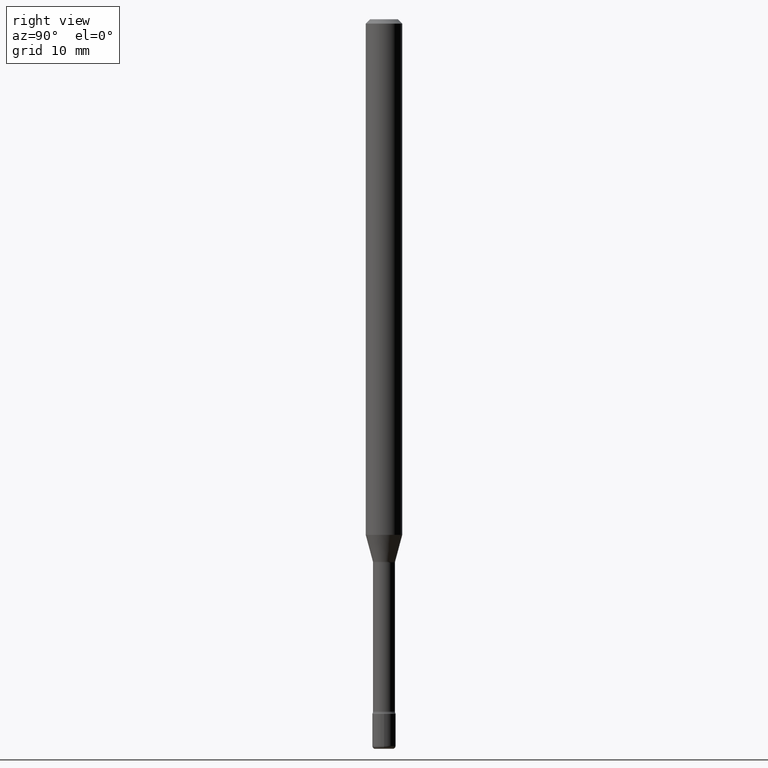
[diagram: clean part render]
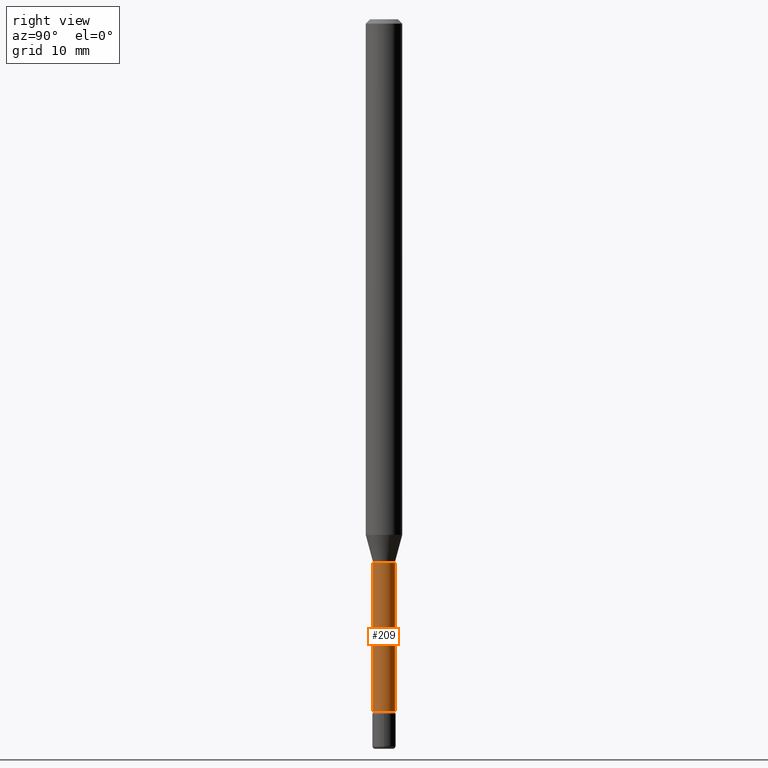
[diagram: same view with one face highlighted and labeled with its STEP entity id]
A machine part, right view. The second image highlights one B-rep face of the part: STEP entity #209.
In plain terms, the highlighted cylindrical surface (edge-blend (fillet) strip) has radius 0.955 mm, axis along (-0, 0, 1).
Its self-contained STEP definition (entity closure, byte-faithful):
#18 = CARTESIAN_POINT ( 'NONE',  ( 5.800080981349790489E-29, -8.281640804682186145E-15, -2.371861204020250025 ) ) ;
#19 = AXIS2_PLACEMENT_3D ( 'NONE', #54, #223, #530 ) ;
#25 = EDGE_CURVE ( 'NONE', #493, #86, #472, .T. ) ;
#32 = EDGE_CURVE ( 'NONE', #123, #86, #319, .T. ) ;
#41 = AXIS2_PLACEMENT_3D ( 'NONE', #495, #149, #369 ) ;
#54 = CARTESIAN_POINT ( 'NONE',  ( 4.553219443960964936E-29, -6.501310595667589929E-15, -1.861974787463811065 ) ) ;
#83 = LINE ( 'NONE', #254, #118 ) ;
#86 = VERTEX_POINT ( 'NONE', #312 ) ;
#90 = VERTEX_POINT ( 'NONE', #406 ) ;
#96 = ORIENTED_EDGE ( 'NONE', *, *, #25, .F. ) ;
#102 = DIRECTION ( 'NONE',  ( -6.982962677686265922E-15, -1.000000000000000000, 0.000000000000000000 ) ) ;
#112 = FACE_OUTER_BOUND ( 'NONE', #481, .T. ) ;
#118 = VECTOR ( 'NONE', #346, 39.37007874015748143 ) ;
#123 = VERTEX_POINT ( 'NONE', #450 ) ;
#131 = EDGE_CURVE ( 'NONE', #90, #123, #283, .T. ) ;
#149 = DIRECTION ( 'NONE',  ( -2.445371158952634318E-29, 3.491621175237824120E-15, 1.000000000000000000 ) ) ;
#209 = ADVANCED_FACE ( 'NONE', ( #112 ), #284, .T. ) ;
#223 = DIRECTION ( 'NONE',  ( -2.445371158952634318E-29, 3.491621175237824120E-15, 1.000000000000000000 ) ) ;
#253 = ORIENTED_EDGE ( 'NONE', *, *, #131, .T. ) ;
#254 = CARTESIAN_POINT ( 'NONE',  ( -2.625593966810038003E-16, -0.03760000000000002923, 6.093583550801884071E-16 ) ) ;
#264 = AXIS2_PLACEMENT_3D ( 'NONE', #18, #365, #102 ) ;
#283 = CIRCLE ( 'NONE', #264, 0.03760000000000005699 ) ;
#284 = CYLINDRICAL_SURFACE ( 'NONE', #41, 0.03760000000000002923 ) ;
#302 = VECTOR ( 'NONE', #490, 39.37007874015748143 ) ;
#312 = CARTESIAN_POINT ( 'NONE',  ( 2.671640686458558589E-16, 0.03759999999999350667, -1.861974787463811065 ) ) ;
#319 = LINE ( 'NONE', #357, #302 ) ;
#346 = DIRECTION ( 'NONE',  ( -2.445371158952634038E-29, 3.491621175237824120E-15, 1.000000000000000000 ) ) ;
#357 = CARTESIAN_POINT ( 'NONE',  ( 2.671640686457978776E-16, 0.03760000000000002923, 3.467884427023037687E-16 ) ) ;
#365 = DIRECTION ( 'NONE',  ( -2.445371158952634318E-29, 3.491621175237824120E-15, 1.000000000000000000 ) ) ;
#369 = DIRECTION ( 'NONE',  ( -6.982962677686265922E-15, -1.000000000000000000, 3.491621175237824120E-15 ) ) ;
#373 = ORIENTED_EDGE ( 'NONE', *, *, #32, .T. ) ;
#406 = CARTESIAN_POINT ( 'NONE',  ( -2.625593966809460162E-16, -0.03760000000000833509, -2.371861204020250025 ) ) ;
#450 = CARTESIAN_POINT ( 'NONE',  ( 2.756905814749770095E-16, 0.03759999999999177195, -2.371861204020250025 ) ) ;
#465 = CARTESIAN_POINT ( 'NONE',  ( -2.625593966809580957E-16, -0.03760000000000650322, -1.861974787463811065 ) ) ;
#472 = CIRCLE ( 'NONE', #19, 0.03760000000000000842 ) ;
#481 = EDGE_LOOP ( 'NONE', ( #253, #373, #96, #524 ) ) ;
#490 = DIRECTION ( 'NONE',  ( -2.445371158952634038E-29, 3.491621175237824120E-15, 1.000000000000000000 ) ) ;
#493 = VERTEX_POINT ( 'NONE', #465 ) ;
#495 = CARTESIAN_POINT ( 'NONE',  ( -1.169113584055446105E-44, 1.669184350826100908E-30, 4.780733988912460139E-16 ) ) ;
#524 = ORIENTED_EDGE ( 'NONE', *, *, #532, .F. ) ;
#530 = DIRECTION ( 'NONE',  ( -6.982962677686265922E-15, -1.000000000000000000, 0.000000000000000000 ) ) ;
#532 = EDGE_CURVE ( 'NONE', #90, #493, #83, .T. ) ;